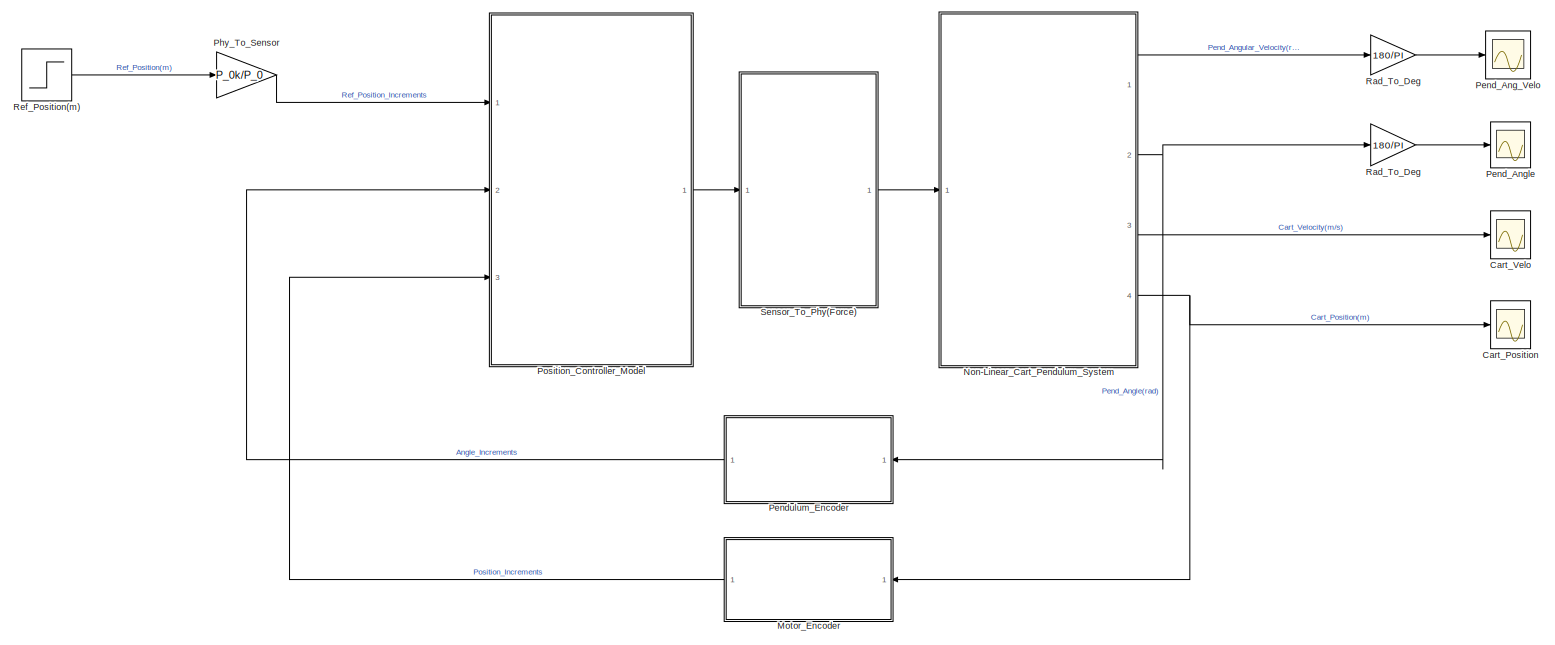
[diagram: root canvas - part 1/1, most of the canvas]
MODEL slx_2b83b862b10f
KIND model
CONFIG AbsTol = auto
CONFIG EnableMultiTasking = off
CONFIG FixedStep = auto
CONFIG MaxStep = auto
CONFIG MinStep = auto
CONFIG RelTol = 1e-3
CONFIG SampleTimeConstraint = Unconstrained
CONFIG SolverName = VariableStepAuto
CONFIG StartTime = 0.0
CONFIG StopTime = 20
BLOCK [Scope] Cart_Position
  Floating = off
  NumInputPorts = 1
  Ports = [1]
  ScopeSpecificationString = Simulink.scopes.TimeScopeBlockCfg('CurrentConfiguration', extmgr.ConfigurationSet(extmgr.Configuration('Core','General UI',true),extmgr.Configuration('Core','Source UI',true),extmgr.Configuration('Sources','WiredSimulink',true,'DataLoggingVariableName','ScopeData1'),extmgr.Configuration('Visuals','Time Domain',true,'SerializedDisplays',{struct('MinYLimReal','-0.12506','MaxYLimReal','1.12554','YLab...<+1433ch>
BLOCK [Scope] Cart_Velo
  Floating = off
  NumInputPorts = 1
  Ports = [1]
  ScopeSpecificationString = Simulink.scopes.TimeScopeBlockCfg('CurrentConfiguration', extmgr.ConfigurationSet(extmgr.Configuration('Core','General UI',true),extmgr.Configuration('Core','Source UI',true),extmgr.Configuration('Sources','WiredSimulink',true,'DataLoggingVariableName','ScopeData2'),extmgr.Configuration('Visuals','Time Domain',true,'SerializedDisplays',{struct('MinYLimReal','-0.12002','MaxYLimReal','0.96556','YLab...<+1454ch>
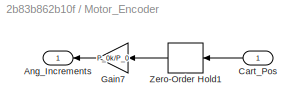
BLOCK [SubSystem] Motor_Encoder
  Ports = [1, 1]
  RequestExecContextInheritance = off
BLOCK [Outport] Motor_Encoder/Ang_Increments
BLOCK [Inport] Motor_Encoder/Cart_Pos
BLOCK [Gain] Motor_Encoder/Gain7
  Gain = P_0k/P_0
  NameLocation = top
BLOCK [ZeroOrderHold] Motor_Encoder/Zero-Order Hold1
  NameLocation = top
  SampleTime = Ts
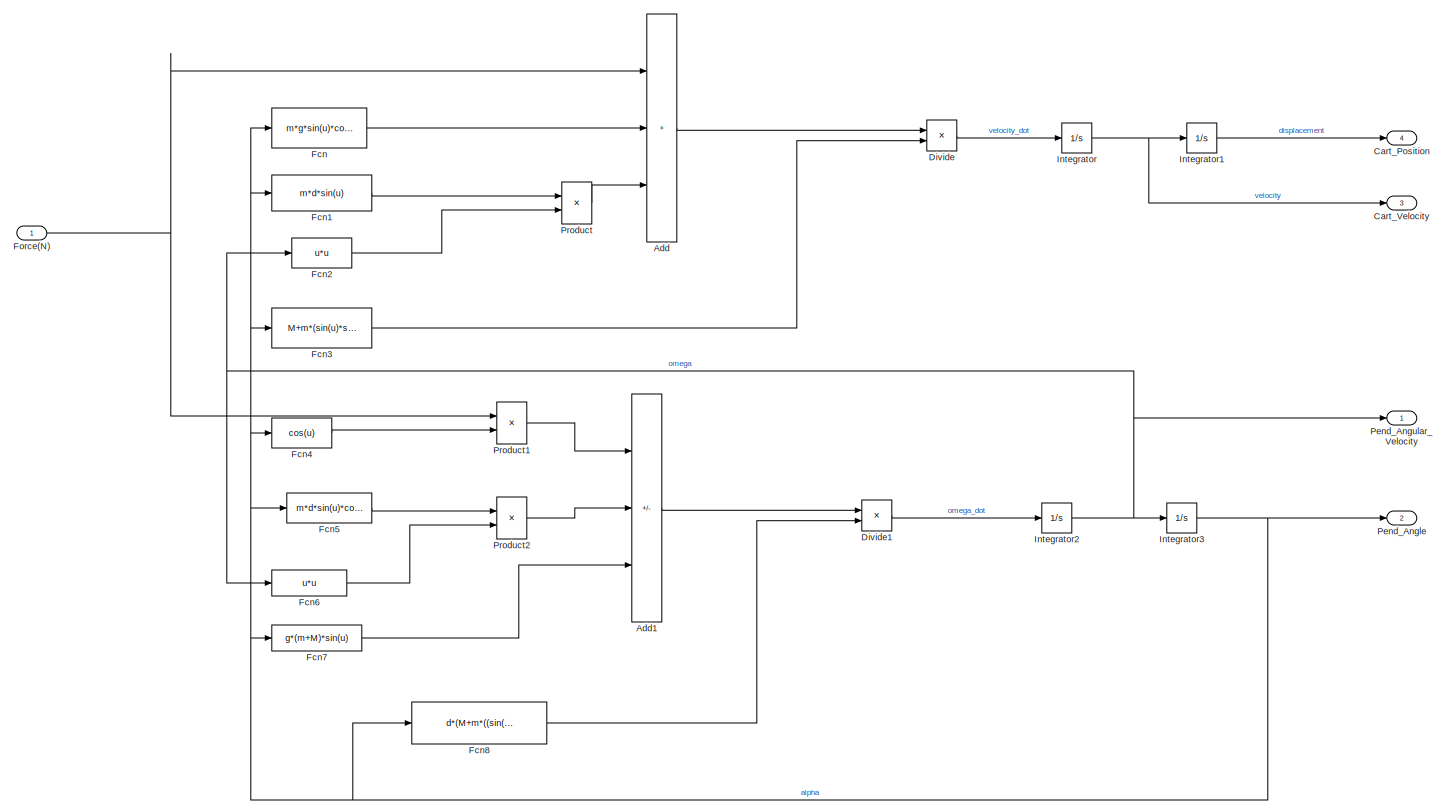
[diagram: Non-Linear_Cart_Pendulum_System - part 1/1, most of the canvas]
BLOCK [SubSystem] Non-Linear_Cart_Pendulum_System
  Ports = [1, 4]
  RequestExecContextInheritance = off
BLOCK [Sum] Non-Linear_Cart_Pendulum_System/Add
  IconShape = rectangular
  Inputs = +++
  Ports = [3, 1]
BLOCK [Sum] Non-Linear_Cart_Pendulum_System/Add1
  IconShape = rectangular
  Inputs = ---
  Ports = [3, 1]
BLOCK [Outport] Non-Linear_Cart_Pendulum_System/Cart_Position
  Port = 4
  VectorParamsAs1DForOutWhenUnconnected = off
BLOCK [Outport] Non-Linear_Cart_Pendulum_System/Cart_Velocity
  Port = 3
  VectorParamsAs1DForOutWhenUnconnected = off
BLOCK [Product] Non-Linear_Cart_Pendulum_System/Divide
  Inputs = */
  Ports = [2, 1]
BLOCK [Product] Non-Linear_Cart_Pendulum_System/Divide1
  Inputs = */
  Ports = [2, 1]
BLOCK [Fcn] Non-Linear_Cart_Pendulum_System/Fcn
  Expr = m*g*sin(u)*cos(u)
BLOCK [Fcn] Non-Linear_Cart_Pendulum_System/Fcn1
  Expr = m*d*sin(u)
BLOCK [Fcn] Non-Linear_Cart_Pendulum_System/Fcn2
  Expr = u*u
BLOCK [Fcn] Non-Linear_Cart_Pendulum_System/Fcn3
  Expr = M+m*(sin(u)*sin(u))
BLOCK [Fcn] Non-Linear_Cart_Pendulum_System/Fcn4
  Expr = cos(u)
BLOCK [Fcn] Non-Linear_Cart_Pendulum_System/Fcn5
  Expr = m*d*sin(u)*cos(u)
BLOCK [Fcn] Non-Linear_Cart_Pendulum_System/Fcn6
  Expr = u*u
BLOCK [Fcn] Non-Linear_Cart_Pendulum_System/Fcn7
  Expr = g*(m+M)*sin(u)
BLOCK [Fcn] Non-Linear_Cart_Pendulum_System/Fcn8
  Expr = d*(M+m*((sin(u)*sin(u))))
BLOCK [Inport] Non-Linear_Cart_Pendulum_System/Force(N)
BLOCK [Integrator] Non-Linear_Cart_Pendulum_System/Integrator
  Ports = [1, 1]
BLOCK [Integrator] Non-Linear_Cart_Pendulum_System/Integrator1
  Ports = [1, 1]
BLOCK [Integrator] Non-Linear_Cart_Pendulum_System/Integrator2
  Ports = [1, 1]
BLOCK [Integrator] Non-Linear_Cart_Pendulum_System/Integrator3
  Ports = [1, 1]
BLOCK [Outport] Non-Linear_Cart_Pendulum_System/Pend_Angle
  Port = 2
  VectorParamsAs1DForOutWhenUnconnected = off
BLOCK [Outport] Non-Linear_Cart_Pendulum_System/Pend_Angular_Velocity
  VectorParamsAs1DForOutWhenUnconnected = off
BLOCK [Product] Non-Linear_Cart_Pendulum_System/Product
  Ports = [2, 1]
BLOCK [Product] Non-Linear_Cart_Pendulum_System/Product1
  Ports = [2, 1]
BLOCK [Product] Non-Linear_Cart_Pendulum_System/Product2
  Ports = [2, 1]
BLOCK [Scope] Pend_Ang_Velo
  Floating = off
  NumInputPorts = 1
  Ports = [1]
  ScopeSpecificationString = Simulink.scopes.TimeScopeBlockCfg('CurrentConfiguration', extmgr.ConfigurationSet(extmgr.Configuration('Core','General UI',true),extmgr.Configuration('Core','Source UI',true),extmgr.Configuration('Sources','WiredSimulink',true,'DataLoggingVariableName','ScopeData4'),extmgr.Configuration('Visuals','Time Domain',true,'SerializedDisplays',{struct('MinYLimReal','-1.81866','MaxYLimReal','1.1774','YLabe...<+1421ch>
BLOCK [Scope] Pend_Angle
  Floating = off
  NumInputPorts = 1
  Ports = [1]
  ScopeSpecificationString = Simulink.scopes.TimeScopeBlockCfg('CurrentConfiguration', extmgr.ConfigurationSet(extmgr.Configuration('Core','General UI',true),extmgr.Configuration('Core','Source UI',true),extmgr.Configuration('Sources','WiredSimulink',true,'DataLoggingVariableName','ScopeData3'),extmgr.Configuration('Visuals','Time Domain',true,'SerializedDisplays',{struct('MinYLimReal','-0.35983','MaxYLimReal','0.24637','YLab...<+1494ch>
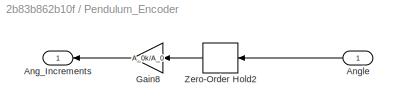
BLOCK [SubSystem] Pendulum_Encoder
  Ports = [1, 1]
  RequestExecContextInheritance = off
BLOCK [Outport] Pendulum_Encoder/Ang_Increments
BLOCK [Inport] Pendulum_Encoder/Angle
BLOCK [Gain] Pendulum_Encoder/Gain8
  Gain = A_0k/A_0
  NameLocation = top
BLOCK [ZeroOrderHold] Pendulum_Encoder/Zero-Order Hold2
  NameLocation = top
  SampleTime = Ts
BLOCK [Gain] Phy_To_Sensor
  Gain = P_0k/P_0
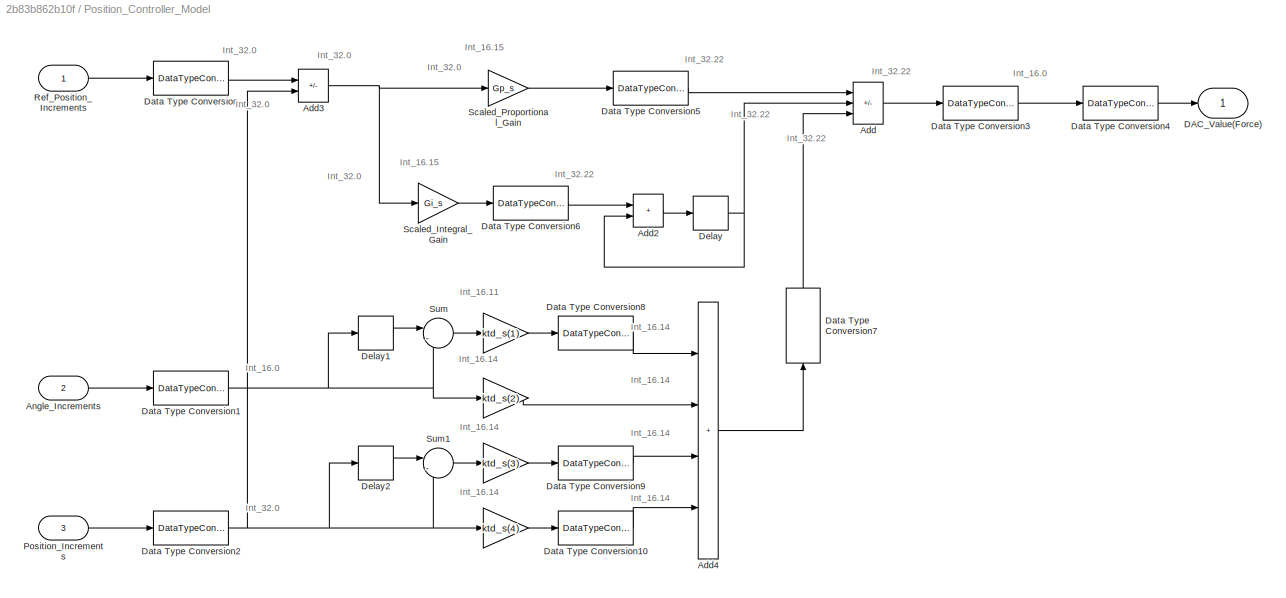
BLOCK [SubSystem] Position_Controller_Model
  Ports = [3, 1]
  RequestExecContextInheritance = off
BLOCK [Gain] Position_Controller_Model/ 
  Gain = ktd_s(1)
BLOCK [Gain] Position_Controller_Model/  
  Gain = ktd_s(4)
BLOCK [Gain] Position_Controller_Model/   
  Gain = ktd_s(3)
BLOCK [Gain] Position_Controller_Model/    
  Gain = ktd_s(2)
BLOCK [Sum] Position_Controller_Model/Add
  IconShape = rectangular
  Inputs = ++-
  Ports = [3, 1]
BLOCK [Sum] Position_Controller_Model/Add2
  IconShape = rectangular
  Ports = [2, 1]
BLOCK [Sum] Position_Controller_Model/Add3
  IconShape = rectangular
  Inputs = +-
  Ports = [2, 1]
BLOCK [Sum] Position_Controller_Model/Add4
  IconShape = rectangular
  Inputs = ++++
  Ports = [4, 1]
BLOCK [Inport] Position_Controller_Model/Angle_Increments
  Port = 2
BLOCK [Outport] Position_Controller_Model/DAC_Value(Force)
BLOCK [DataTypeConversion] Position_Controller_Model/Data Type Conversion
  OutDataTypeStr = int32
  RndMeth = Floor
  SaturateOnIntegerOverflow = off
BLOCK [DataTypeConversion] Position_Controller_Model/Data Type Conversion1
  OutDataTypeStr = int16
  RndMeth = Floor
  SaturateOnIntegerOverflow = off
BLOCK [DataTypeConversion] Position_Controller_Model/Data Type Conversion10
  OutDataTypeStr = fixdt(1,32,KTD_SHIFT_1)
  RndMeth = Floor
  SaturateOnIntegerOverflow = off
BLOCK [DataTypeConversion] Position_Controller_Model/Data Type Conversion2
  OutDataTypeStr = int32
  RndMeth = Floor
  SaturateOnIntegerOverflow = off
BLOCK [DataTypeConversion] Position_Controller_Model/Data Type Conversion3
  OutDataTypeStr = int16
  RndMeth = Floor
  SaturateOnIntegerOverflow = off
BLOCK [DataTypeConversion] Position_Controller_Model/Data Type Conversion4
  OutDataTypeStr = double
  RndMeth = Floor
  SaturateOnIntegerOverflow = off
BLOCK [DataTypeConversion] Position_Controller_Model/Data Type Conversion5
  OutDataTypeStr = fixdt(1,32,KI_SHIFT)
  RndMeth = Floor
  SaturateOnIntegerOverflow = off
BLOCK [DataTypeConversion] Position_Controller_Model/Data Type Conversion6
  OutDataTypeStr = fixdt(1,32,KI_SHIFT)
  RndMeth = Floor
  SaturateOnIntegerOverflow = off
BLOCK [DataTypeConversion] Position_Controller_Model/Data Type Conversion7
  NameLocation = right
  OutDataTypeStr = fixdt(1,32,KI_SHIFT)
  RndMeth = Floor
  SaturateOnIntegerOverflow = off
BLOCK [DataTypeConversion] Position_Controller_Model/Data Type Conversion8
  OutDataTypeStr = fixdt(1,32,KTD_SHIFT_1)
  RndMeth = Floor
  SaturateOnIntegerOverflow = off
BLOCK [DataTypeConversion] Position_Controller_Model/Data Type Conversion9
  OutDataTypeStr = fixdt(1,32,KTD_SHIFT_1)
  RndMeth = Floor
  SaturateOnIntegerOverflow = off
BLOCK [Delay] Position_Controller_Model/Delay
  DelayLength = 1
  InputPortMap = u0
  Ports = [1, 1]
  SampleTime = Ts
BLOCK [Delay] Position_Controller_Model/Delay1
  DelayLength = 1
  InputPortMap = u0
  Ports = [1, 1]
  SampleTime = Ts
BLOCK [Delay] Position_Controller_Model/Delay2
  DelayLength = 1
  InputPortMap = u0
  Ports = [1, 1]
  SampleTime = Ts
BLOCK [Inport] Position_Controller_Model/Position_Increments
  Port = 3
BLOCK [Inport] Position_Controller_Model/Ref_Position_Increments
BLOCK [Gain] Position_Controller_Model/Scaled_Integral_Gain
  Gain = Gi_s
BLOCK [Gain] Position_Controller_Model/Scaled_Proportional_Gain
  Gain = Gp_s
BLOCK [Sum] Position_Controller_Model/Sum
  Inputs = |-+
  Ports = [2, 1]
BLOCK [Sum] Position_Controller_Model/Sum1
  Inputs = |-+
  Ports = [2, 1]
BLOCK [Gain] Rad_To_Deg
  Gain = 180/PI
BLOCK [Gain] Rad_To_Deg 
  Gain = 180/PI
BLOCK [Step] Ref_Position(m)
  SampleTime = Ts
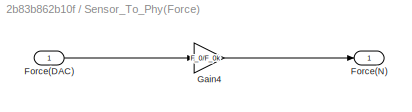
BLOCK [SubSystem] Sensor_To_Phy(Force)
  Ports = [1, 1]
  RequestExecContextInheritance = off
BLOCK [Inport] Sensor_To_Phy(Force)/Force(DAC)
BLOCK [Outport] Sensor_To_Phy(Force)/Force(N)
BLOCK [Gain] Sensor_To_Phy(Force)/Gain4
  Gain = F_0/F_0k
ANNOTATION Position_Controller_Model: Int_16.11
ANNOTATION Position_Controller_Model: Int_16.14
ANNOTATION Position_Controller_Model: Int_16.15
ANNOTATION Position_Controller_Model: Int_16.0
ANNOTATION Position_Controller_Model: Int_32.22
ANNOTATION Position_Controller_Model: Int_32.0
LINE Motor_Encoder/Cart_Pos:1 -> Motor_Encoder/Zero-Order Hold1:1
LINE Motor_Encoder/Gain7:1 -> Motor_Encoder/Ang_Increments:1
LINE Motor_Encoder/Zero-Order Hold1:1 -> Motor_Encoder/Gain7:1
LINE Motor_Encoder:1 -> Position_Controller_Model:3
LINE Non-Linear_Cart_Pendulum_System/Add1:1 -> Non-Linear_Cart_Pendulum_System/Divide1:1
LINE Non-Linear_Cart_Pendulum_System/Add:1 -> Non-Linear_Cart_Pendulum_System/Divide:1
LINE Non-Linear_Cart_Pendulum_System/Divide1:1 -> Non-Linear_Cart_Pendulum_System/Integrator2:1
LINE Non-Linear_Cart_Pendulum_System/Divide:1 -> Non-Linear_Cart_Pendulum_System/Integrator:1
LINE Non-Linear_Cart_Pendulum_System/Fcn1:1 -> Non-Linear_Cart_Pendulum_System/Product:1
LINE Non-Linear_Cart_Pendulum_System/Fcn2:1 -> Non-Linear_Cart_Pendulum_System/Product:2
LINE Non-Linear_Cart_Pendulum_System/Fcn3:1 -> Non-Linear_Cart_Pendulum_System/Divide:2
LINE Non-Linear_Cart_Pendulum_System/Fcn4:1 -> Non-Linear_Cart_Pendulum_System/Product1:2
LINE Non-Linear_Cart_Pendulum_System/Fcn5:1 -> Non-Linear_Cart_Pendulum_System/Product2:1
LINE Non-Linear_Cart_Pendulum_System/Fcn6:1 -> Non-Linear_Cart_Pendulum_System/Product2:2
LINE Non-Linear_Cart_Pendulum_System/Fcn7:1 -> Non-Linear_Cart_Pendulum_System/Add1:3
LINE Non-Linear_Cart_Pendulum_System/Fcn8:1 -> Non-Linear_Cart_Pendulum_System/Divide1:2
LINE Non-Linear_Cart_Pendulum_System/Fcn:1 -> Non-Linear_Cart_Pendulum_System/Add:2
NET Non-Linear_Cart_Pendulum_System/Force(N):1 -> Non-Linear_Cart_Pendulum_System/Add:1, Non-Linear_Cart_Pendulum_System/Product1:1
LINE Non-Linear_Cart_Pendulum_System/Integrator1:1 -> Non-Linear_Cart_Pendulum_System/Cart_Position:1
NET Non-Linear_Cart_Pendulum_System/Integrator2:1 -> Non-Linear_Cart_Pendulum_System/Fcn2:1, Non-Linear_Cart_Pendulum_System/Fcn6:1, Non-Linear_Cart_Pendulum_System/Integrator3:1, Non-Linear_Cart_Pendulum_System/Pend_Angular_Velocity:1
NET Non-Linear_Cart_Pendulum_System/Integrator3:1 -> Non-Linear_Cart_Pendulum_System/Fcn1:1, Non-Linear_Cart_Pendulum_System/Fcn3:1, Non-Linear_Cart_Pendulum_System/Fcn4:1, Non-Linear_Cart_Pendulum_System/Fcn5:1, Non-Linear_Cart_Pendulum_System/Fcn7:1, Non-Linear_Cart_Pendulum_System/Fcn8:1, Non-Linear_Cart_Pendulum_System/Fcn:1, Non-Linear_Cart_Pendulum_System/Pend_Angle:1
NET Non-Linear_Cart_Pendulum_System/Integrator:1 -> Non-Linear_Cart_Pendulum_System/Cart_Velocity:1, Non-Linear_Cart_Pendulum_System/Integrator1:1
LINE Non-Linear_Cart_Pendulum_System/Product1:1 -> Non-Linear_Cart_Pendulum_System/Add1:1
LINE Non-Linear_Cart_Pendulum_System/Product2:1 -> Non-Linear_Cart_Pendulum_System/Add1:2
LINE Non-Linear_Cart_Pendulum_System/Product:1 -> Non-Linear_Cart_Pendulum_System/Add:3
LINE Non-Linear_Cart_Pendulum_System:1 -> Rad_To_Deg:1
NET Non-Linear_Cart_Pendulum_System:2 -> Pendulum_Encoder:1, Rad_To_Deg :1
LINE Non-Linear_Cart_Pendulum_System:3 -> Cart_Velo:1
NET Non-Linear_Cart_Pendulum_System:4 -> Cart_Position:1, Motor_Encoder:1
LINE Pendulum_Encoder/Angle:1 -> Pendulum_Encoder/Zero-Order Hold2:1
LINE Pendulum_Encoder/Gain8:1 -> Pendulum_Encoder/Ang_Increments:1
LINE Pendulum_Encoder/Zero-Order Hold2:1 -> Pendulum_Encoder/Gain8:1
LINE Pendulum_Encoder:1 -> Position_Controller_Model:2
LINE Phy_To_Sensor:1 -> Position_Controller_Model:1
LINE Position_Controller_Model/    :1 -> Position_Controller_Model/Add4:2
LINE Position_Controller_Model/   :1 -> Position_Controller_Model/Data Type Conversion9:1
LINE Position_Controller_Model/  :1 -> Position_Controller_Model/Data Type Conversion10:1
LINE Position_Controller_Model/ :1 -> Position_Controller_Model/Data Type Conversion8:1
LINE Position_Controller_Model/Add2:1 -> Position_Controller_Model/Delay:1
NET Position_Controller_Model/Add3:1 -> Position_Controller_Model/Scaled_Integral_Gain:1, Position_Controller_Model/Scaled_Proportional_Gain:1
LINE Position_Controller_Model/Add4:1 -> Position_Controller_Model/Data Type Conversion7:1
LINE Position_Controller_Model/Add:1 -> Position_Controller_Model/Data Type Conversion3:1
LINE Position_Controller_Model/Angle_Increments:1 -> Position_Controller_Model/Data Type Conversion1:1
LINE Position_Controller_Model/Data Type Conversion10:1 -> Position_Controller_Model/Add4:4
NET Position_Controller_Model/Data Type Conversion1:1 -> Position_Controller_Model/    :1, Position_Controller_Model/Delay1:1, Position_Controller_Model/Sum:2
NET Position_Controller_Model/Data Type Conversion2:1 -> Position_Controller_Model/  :1, Position_Controller_Model/Add3:2, Position_Controller_Model/Delay2:1, Position_Controller_Model/Sum1:2
LINE Position_Controller_Model/Data Type Conversion3:1 -> Position_Controller_Model/Data Type Conversion4:1
LINE Position_Controller_Model/Data Type Conversion4:1 -> Position_Controller_Model/DAC_Value(Force):1
LINE Position_Controller_Model/Data Type Conversion5:1 -> Position_Controller_Model/Add:1
LINE Position_Controller_Model/Data Type Conversion6:1 -> Position_Controller_Model/Add2:1
LINE Position_Controller_Model/Data Type Conversion7:1 -> Position_Controller_Model/Add:3
LINE Position_Controller_Model/Data Type Conversion8:1 -> Position_Controller_Model/Add4:1
LINE Position_Controller_Model/Data Type Conversion9:1 -> Position_Controller_Model/Add4:3
LINE Position_Controller_Model/Data Type Conversion:1 -> Position_Controller_Model/Add3:1
LINE Position_Controller_Model/Delay1:1 -> Position_Controller_Model/Sum:1
LINE Position_Controller_Model/Delay2:1 -> Position_Controller_Model/Sum1:1
NET Position_Controller_Model/Delay:1 -> Position_Controller_Model/Add2:2, Position_Controller_Model/Add:2
LINE Position_Controller_Model/Position_Increments:1 -> Position_Controller_Model/Data Type Conversion2:1
LINE Position_Controller_Model/Ref_Position_Increments:1 -> Position_Controller_Model/Data Type Conversion:1
LINE Position_Controller_Model/Scaled_Integral_Gain:1 -> Position_Controller_Model/Data Type Conversion6:1
LINE Position_Controller_Model/Scaled_Proportional_Gain:1 -> Position_Controller_Model/Data Type Conversion5:1
LINE Position_Controller_Model/Sum1:1 -> Position_Controller_Model/   :1
LINE Position_Controller_Model/Sum:1 -> Position_Controller_Model/ :1
LINE Position_Controller_Model:1 -> Sensor_To_Phy(Force):1
LINE Rad_To_Deg :1 -> Pend_Angle:1
LINE Rad_To_Deg:1 -> Pend_Ang_Velo:1
LINE Ref_Position(m):1 -> Phy_To_Sensor:1
LINE Sensor_To_Phy(Force)/Force(DAC):1 -> Sensor_To_Phy(Force)/Gain4:1
LINE Sensor_To_Phy(Force)/Gain4:1 -> Sensor_To_Phy(Force)/Force(N):1
LINE Sensor_To_Phy(Force):1 -> Non-Linear_Cart_Pendulum_System:1
note: NET lines group one-source signal fan-out (src -> all destinations, sorted); 1:1 wires keep LINE
